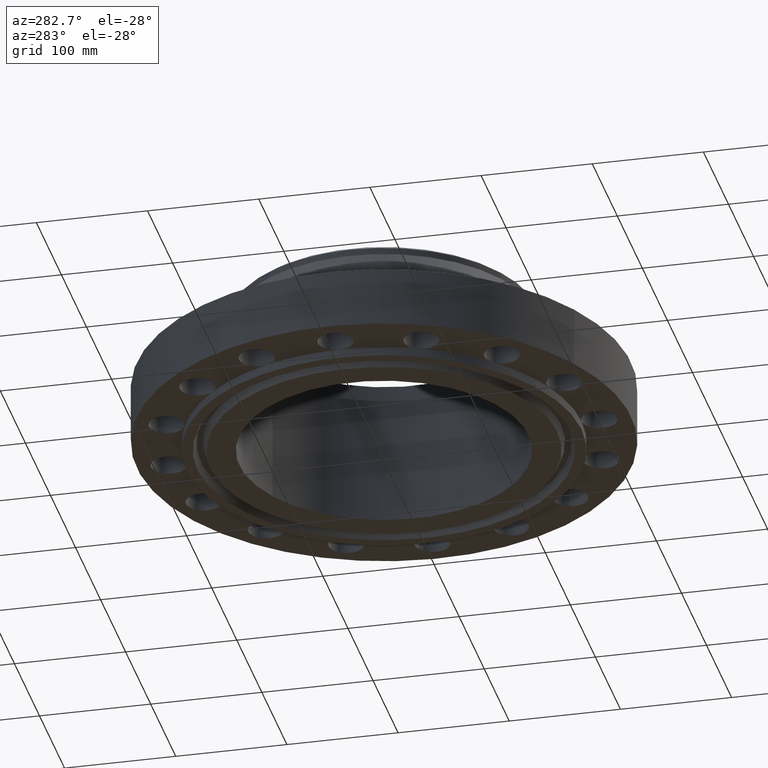
[diagram: clean part render]
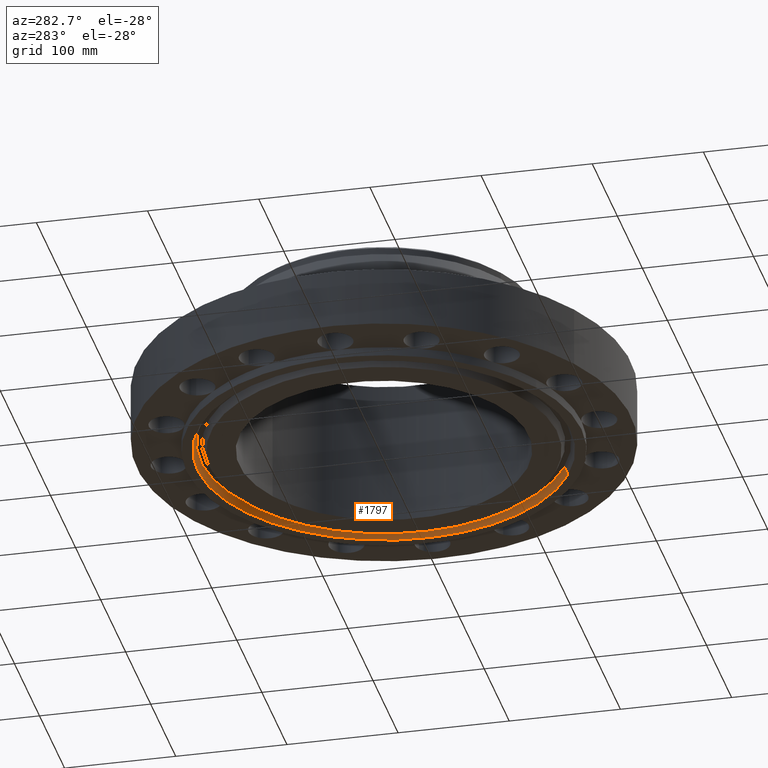
[diagram: same view with one face highlighted and labeled with its STEP entity id]
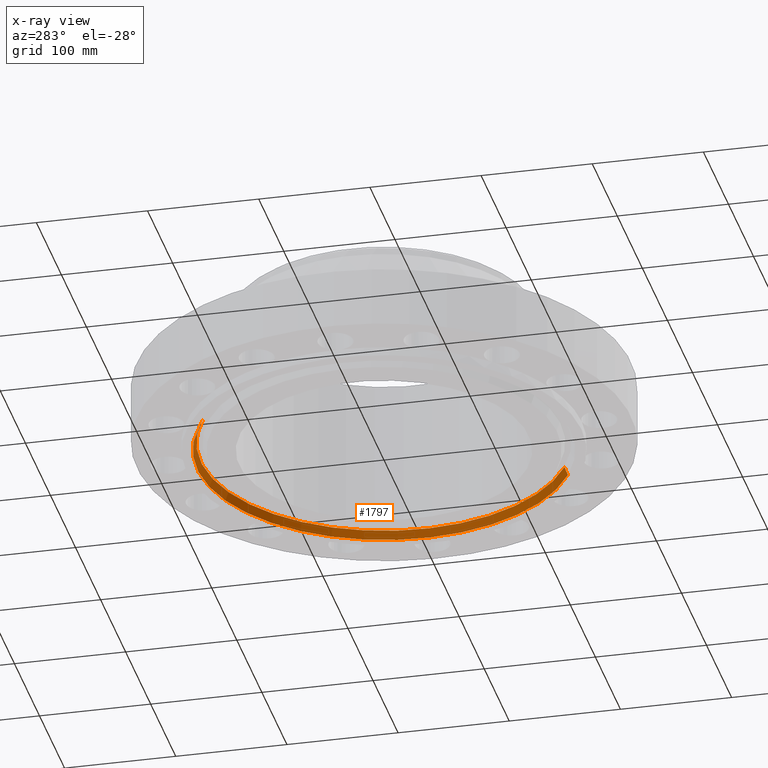
[diagram: x-ray of the same camera — body ghosted, the highlighted face saturated]
A machine part, auxiliary view. The second image highlights one B-rep face of the part: STEP entity #1797.
The next image is the same camera in x-ray: the body ghosted, the highlighted face saturated — about 0% of this face is hidden behind the body in this view.
In plain terms, the highlighted conical surface has half-angle 23 deg.
Its self-contained STEP definition (entity closure, byte-faithful):
#1658=AXIS2_PLACEMENT_3D('Circle Axis2P3D',#1656,#1657,$) ;
#1732=AXIS2_PLACEMENT_3D('Cone Axis2P3D',#1729,#1730,#1731) ;
#1753=AXIS2_PLACEMENT_3D('Circle Axis2P3D',#1751,#1752,$) ;
#1651=CARTESIAN_POINT('Vertex',(3.16876309742,-5.80038194284,-0.313000000001)) ;
#1653=CARTESIAN_POINT('Vertex',(-3.16876309742,5.80038194284,-0.313000000001)) ;
#1656=CARTESIAN_POINT('Axis2P3D Location',(0.,-1.1189649382E-015,-0.313000000001)) ;
#1698=CARTESIAN_POINT('Vertex',(-3.10890997382,5.69082153499,-0.0188873350169)) ;
#1700=CARTESIAN_POINT('Vertex',(3.10890997382,-5.69082153499,-0.0188873350169)) ;
#1729=CARTESIAN_POINT('Axis2P3D Location',(0.,0.,-0.0188873350169)) ;
#1734=CARTESIAN_POINT('Line Origine',(-3.13883653562,5.74560173892,-0.165943667509)) ;
#1739=CARTESIAN_POINT('Line Origine',(3.13883653562,-5.74560173892,-0.165943667509)) ;
#1751=CARTESIAN_POINT('Axis2P3D Location',(0.,0.,-0.0188873350169)) ;
#1657=DIRECTION('Axis2P3D Direction',(0.,0.,-0.0393700787402)) ;
#1730=DIRECTION('Axis2P3D Direction',(-0.,-0.,-0.0393700787402)) ;
#1731=DIRECTION('Axis2P3D XDirection',(-0.0188750212049,0.0345504945626,0.)) ;
#1735=DIRECTION('Vector Direction',(-0.00737505833565,0.0134999537303,-0.0362403485611)) ;
#1740=DIRECTION('Vector Direction',(0.00737505833565,-0.0134999537303,-0.0362403485611)) ;
#1752=DIRECTION('Axis2P3D Direction',(0.,0.,0.0393700787402)) ;
#1736=VECTOR('Line Direction',#1735,0.0393700787402) ;
#1741=VECTOR('Line Direction',#1740,0.0393700787402) ;
#1792=ORIENTED_EDGE('',*,*,#1660,.T.) ;
#1793=ORIENTED_EDGE('',*,*,#1743,.T.) ;
#1794=ORIENTED_EDGE('',*,*,#1755,.T.) ;
#1795=ORIENTED_EDGE('',*,*,#1738,.F.) ;
#1797=ADVANCED_FACE('PartBody',(#1796),#1733,.F.) ;
#1659=CIRCLE('generated circle',#1658,6.60950000003) ;
#1754=CIRCLE('generated circle',#1753,6.48465658061) ;
#1733=CONICAL_SURFACE('Cone',#1732,6.48465658061,0.401425727959) ;
#1660=EDGE_CURVE('',#1654,#1652,#1659,.T.) ;
#1738=EDGE_CURVE('',#1654,#1699,#1737,.F.) ;
#1743=EDGE_CURVE('',#1652,#1701,#1742,.F.) ;
#1755=EDGE_CURVE('',#1701,#1699,#1754,.T.) ;
#1791=EDGE_LOOP('',(#1792,#1793,#1794,#1795)) ;
#1796=FACE_OUTER_BOUND('',#1791,.T.) ;
#1737=LINE('Line',#1734,#1736) ;
#1742=LINE('Line',#1739,#1741) ;
#1652=VERTEX_POINT('',#1651) ;
#1654=VERTEX_POINT('',#1653) ;
#1699=VERTEX_POINT('',#1698) ;
#1701=VERTEX_POINT('',#1700) ;